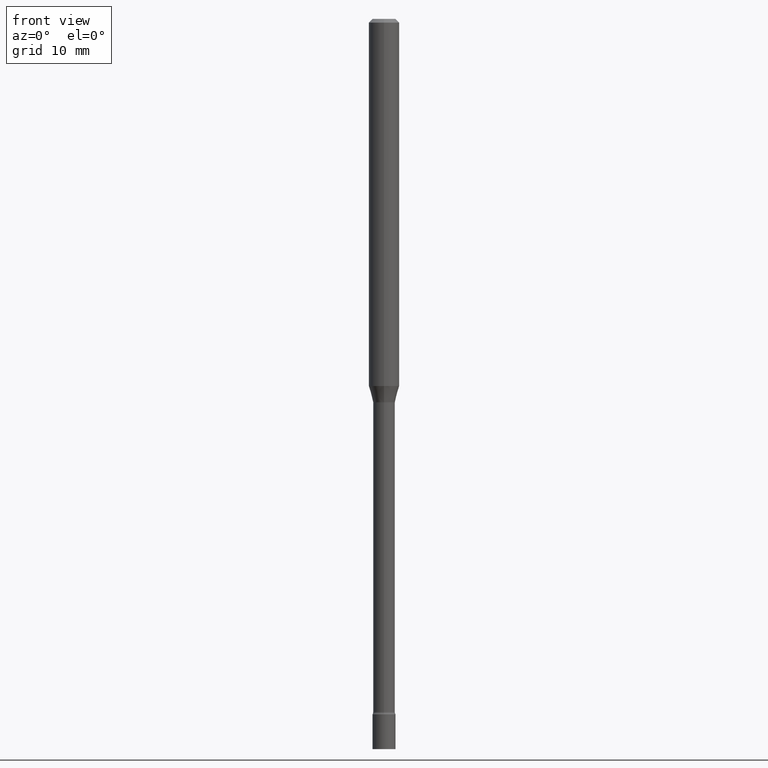
[diagram: clean part render]
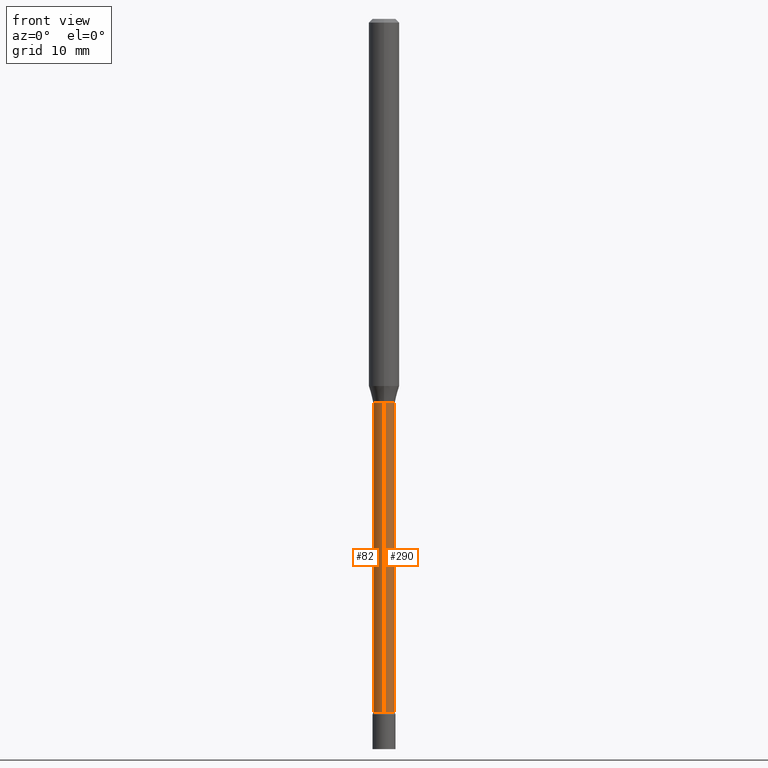
[diagram: same view with one multi-face feature highlighted, each face labeled with its STEP entity id]
A machine part, front view. The highlighted faces form ONE feature: a constant-radius fillet chain: 2 tangent blend faces with common blend radius 1.1341 mm. The faces share edges in the B-rep.
Their STEP definitions:
[1] entity #290 (Cylinder):
#18 = LINE ( 'NONE', #232, #134 ) ;
#91 = EDGE_CURVE ( 'NONE', #338, #191, #244, .T. ) ;
#96 = ORIENTED_EDGE ( 'NONE', *, *, #399, .T. ) ;
#111 = CARTESIAN_POINT ( 'NONE',  ( -3.117892835586925182E-16, -0.04465000000000010627, 1.558946275287091727E-16 ) ) ;
#112 = ORIENTED_EDGE ( 'NONE', *, *, #91, .F. ) ;
#126 = AXIS2_PLACEMENT_3D ( 'NONE', #276, #419, #187 ) ;
#134 = VECTOR ( 'NONE', #158, 39.37007874015748143 ) ;
#158 = DIRECTION ( 'NONE',  ( -2.445469029055619993E-29, 3.491481019679928662E-15, 1.000000000000000000 ) ) ;
#187 = DIRECTION ( 'NONE',  ( -6.982962677686265922E-15, -1.000000000000000000, 3.491481019679928268E-15 ) ) ;
#191 = VERTEX_POINT ( 'NONE', #415 ) ;
#199 = FACE_OUTER_BOUND ( 'NONE', #481, .T. ) ;
#229 = CARTESIAN_POINT ( 'NONE',  ( -3.117892835586235422E-16, -0.04465000000001014685, -2.848203551853162985 ) ) ;
#232 = CARTESIAN_POINT ( 'NONE',  ( 3.172573315168854388E-16, 0.04465000000000010627, -1.558946275287091727E-16 ) ) ;
#244 = CIRCLE ( 'NONE', #475, 0.04465000000000000913 ) ;
#253 = CARTESIAN_POINT ( 'NONE',  ( 3.273825655015366009E-16, 0.04464999999999025304, -2.848203551853162985 ) ) ;
#256 = CARTESIAN_POINT ( 'NONE',  ( 3.856443002344318772E-29, -5.505977538943686093E-15, -1.576974787463811367 ) ) ;
#269 = CARTESIAN_POINT ( 'NONE',  ( 6.965193574503121055E-29, -9.944448641480275747E-15, -2.848203551853162985 ) ) ;
#273 = EDGE_CURVE ( 'NONE', #454, #191, #18, .T. ) ;
#276 = CARTESIAN_POINT ( 'NONE',  ( 0.000000000000000000, 0.000000000000000000, 0.000000000000000000 ) ) ;
#290 = ADVANCED_FACE ( 'NONE', ( #199 ), #472, .T. ) ;
#296 = EDGE_CURVE ( 'NONE', #434, #338, #316, .T. ) ;
#316 = LINE ( 'NONE', #111, #493 ) ;
#322 = AXIS2_PLACEMENT_3D ( 'NONE', #269, #515, #503 ) ;
#335 = DIRECTION ( 'NONE',  ( -2.445469029055619713E-29, 3.491481019679928662E-15, 1.000000000000000000 ) ) ;
#338 = VERTEX_POINT ( 'NONE', #464 ) ;
#346 = DIRECTION ( 'NONE',  ( -2.445469029055619993E-29, 3.491481019679928662E-15, 1.000000000000000000 ) ) ;
#399 = EDGE_CURVE ( 'NONE', #434, #454, #421, .T. ) ;
#415 = CARTESIAN_POINT ( 'NONE',  ( 3.172573315169550065E-16, 0.04464999999999450658, -1.576974787463811589 ) ) ;
#419 = DIRECTION ( 'NONE',  ( -2.445469029055619713E-29, 3.491481019679928662E-15, 1.000000000000000000 ) ) ;
#421 = CIRCLE ( 'NONE', #322, 0.04465000000000019648 ) ;
#431 = ORIENTED_EDGE ( 'NONE', *, *, #296, .F. ) ;
#434 = VERTEX_POINT ( 'NONE', #229 ) ;
#444 = ORIENTED_EDGE ( 'NONE', *, *, #273, .T. ) ;
#454 = VERTEX_POINT ( 'NONE', #253 ) ;
#464 = CARTESIAN_POINT ( 'NONE',  ( -3.117892835586532724E-16, -0.04465000000000551861, -1.576974787463810923 ) ) ;
#472 = CYLINDRICAL_SURFACE ( 'NONE', #126, 0.04465000000000010627 ) ;
#475 = AXIS2_PLACEMENT_3D ( 'NONE', #256, #335, #492 ) ;
#481 = EDGE_LOOP ( 'NONE', ( #96, #444, #112, #431 ) ) ;
#492 = DIRECTION ( 'NONE',  ( -6.982962677686265922E-15, -1.000000000000000000, 6.118360568117049942E-15 ) ) ;
#493 = VECTOR ( 'NONE', #346, 39.37007874015748143 ) ;
#503 = DIRECTION ( 'NONE',  ( -6.982962677686265922E-15, -1.000000000000000000, 0.000000000000000000 ) ) ;
#515 = DIRECTION ( 'NONE',  ( -2.445469029055619713E-29, 3.491481019679928662E-15, 1.000000000000000000 ) ) ;
[2] entity #82 (Cylinder):
#2 = DIRECTION ( 'NONE',  ( -6.982962677686265922E-15, -1.000000000000000000, 3.491481019679928268E-15 ) ) ;
#18 = LINE ( 'NONE', #232, #134 ) ;
#39 = CIRCLE ( 'NONE', #350, 0.04465000000000000913 ) ;
#47 = AXIS2_PLACEMENT_3D ( 'NONE', #502, #142, #51 ) ;
#51 = DIRECTION ( 'NONE',  ( -6.982962677686265922E-15, -1.000000000000000000, 0.000000000000000000 ) ) ;
#74 = ORIENTED_EDGE ( 'NONE', *, *, #201, .T. ) ;
#82 = ADVANCED_FACE ( 'NONE', ( #403 ), #175, .T. ) ;
#90 = DIRECTION ( 'NONE',  ( -2.445469029055619713E-29, 3.491481019679928662E-15, 1.000000000000000000 ) ) ;
#107 = AXIS2_PLACEMENT_3D ( 'NONE', #448, #90, #2 ) ;
#110 = EDGE_LOOP ( 'NONE', ( #289, #74, #198, #330 ) ) ;
#111 = CARTESIAN_POINT ( 'NONE',  ( -3.117892835586925182E-16, -0.04465000000000010627, 1.558946275287091727E-16 ) ) ;
#134 = VECTOR ( 'NONE', #158, 39.37007874015748143 ) ;
#142 = DIRECTION ( 'NONE',  ( -2.445469029055619713E-29, 3.491481019679928662E-15, 1.000000000000000000 ) ) ;
#158 = DIRECTION ( 'NONE',  ( -2.445469029055619993E-29, 3.491481019679928662E-15, 1.000000000000000000 ) ) ;
#175 = CYLINDRICAL_SURFACE ( 'NONE', #107, 0.04465000000000010627 ) ;
#191 = VERTEX_POINT ( 'NONE', #415 ) ;
#198 = ORIENTED_EDGE ( 'NONE', *, *, #296, .T. ) ;
#201 = EDGE_CURVE ( 'NONE', #454, #434, #507, .T. ) ;
#229 = CARTESIAN_POINT ( 'NONE',  ( -3.117892835586235422E-16, -0.04465000000001014685, -2.848203551853162985 ) ) ;
#232 = CARTESIAN_POINT ( 'NONE',  ( 3.172573315168854388E-16, 0.04465000000000010627, -1.558946275287091727E-16 ) ) ;
#253 = CARTESIAN_POINT ( 'NONE',  ( 3.273825655015366009E-16, 0.04464999999999025304, -2.848203551853162985 ) ) ;
#271 = CARTESIAN_POINT ( 'NONE',  ( 3.856443002344318772E-29, -5.505977538943686093E-15, -1.576974787463811367 ) ) ;
#273 = EDGE_CURVE ( 'NONE', #454, #191, #18, .T. ) ;
#289 = ORIENTED_EDGE ( 'NONE', *, *, #273, .F. ) ;
#296 = EDGE_CURVE ( 'NONE', #434, #338, #316, .T. ) ;
#305 = EDGE_CURVE ( 'NONE', #191, #338, #39, .T. ) ;
#316 = LINE ( 'NONE', #111, #493 ) ;
#319 = DIRECTION ( 'NONE',  ( -2.445469029055619713E-29, 3.491481019679928662E-15, 1.000000000000000000 ) ) ;
#330 = ORIENTED_EDGE ( 'NONE', *, *, #305, .F. ) ;
#338 = VERTEX_POINT ( 'NONE', #464 ) ;
#346 = DIRECTION ( 'NONE',  ( -2.445469029055619993E-29, 3.491481019679928662E-15, 1.000000000000000000 ) ) ;
#350 = AXIS2_PLACEMENT_3D ( 'NONE', #271, #319, #424 ) ;
#403 = FACE_OUTER_BOUND ( 'NONE', #110, .T. ) ;
#415 = CARTESIAN_POINT ( 'NONE',  ( 3.172573315169550065E-16, 0.04464999999999450658, -1.576974787463811589 ) ) ;
#424 = DIRECTION ( 'NONE',  ( -6.982962677686265922E-15, -1.000000000000000000, 6.118360568117049942E-15 ) ) ;
#434 = VERTEX_POINT ( 'NONE', #229 ) ;
#448 = CARTESIAN_POINT ( 'NONE',  ( 0.000000000000000000, 0.000000000000000000, 0.000000000000000000 ) ) ;
#454 = VERTEX_POINT ( 'NONE', #253 ) ;
#464 = CARTESIAN_POINT ( 'NONE',  ( -3.117892835586532724E-16, -0.04465000000000551861, -1.576974787463810923 ) ) ;
#493 = VECTOR ( 'NONE', #346, 39.37007874015748143 ) ;
#502 = CARTESIAN_POINT ( 'NONE',  ( 6.965193574503121055E-29, -9.944448641480275747E-15, -2.848203551853162985 ) ) ;
#507 = CIRCLE ( 'NONE', #47, 0.04465000000000019648 ) ;